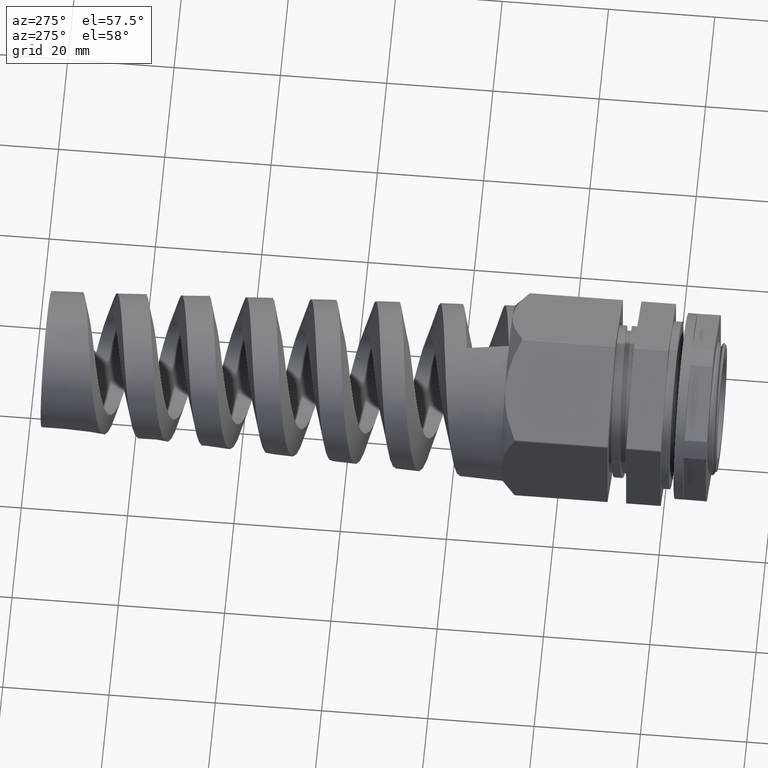
[diagram: clean part render]
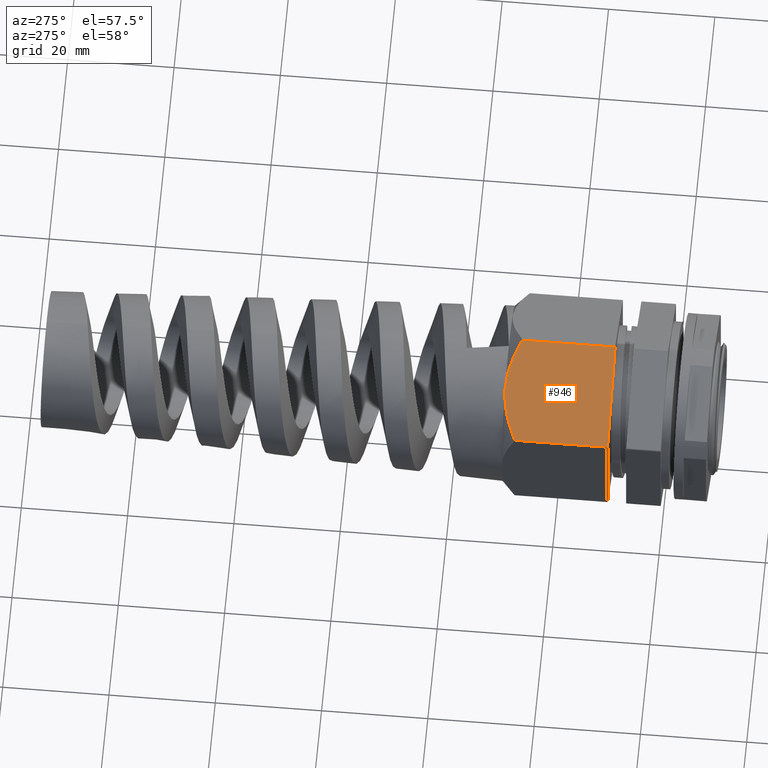
[diagram: same view with one face highlighted and labeled with its STEP entity id]
A machine part, auxiliary view. The second image highlights one B-rep face of the part: STEP entity #946.
In plain terms, the highlighted planar face has unit normal (0.5, 0, -0.866).
Its self-contained STEP definition (entity closure, byte-faithful):
#49 = CARTESIAN_POINT ( 'NONE',  ( -8.963920435851523600, 30.00000000000000400, 13.87723700662438400 ) ) ;
#487 = B_SPLINE_CURVE_WITH_KNOTS ( 'NONE', 3,
 ( #11593, #10375, #12693, #5910, #13800, #7095, #49, #8266 ),
 .UNSPECIFIED., .F., .F.,
 ( 4, 2, 2, 4 ),
 ( 2.540305968342817100E-007, 0.004879683980089100300, 0.007319398954835234700, 0.009759113929581370000 ),
 .UNSPECIFIED. ) ;
#613 = EDGE_CURVE ( 'NONE', #911, #1411, #5932, .T. ) ;
#911 = VERTEX_POINT ( 'NONE', #3100 ) ;
#946 = ADVANCED_FACE ( 'NONE', ( #980 ), #2974, .F. ) ;
#980 = FACE_OUTER_BOUND ( 'NONE', #12245, .T. ) ;
#1199 = ORIENTED_EDGE ( 'NONE', *, *, #9660, .F. ) ;
#1411 = VERTEX_POINT ( 'NONE', #9355 ) ;
#1514 = CARTESIAN_POINT ( 'NONE',  ( -22.49999999999999600, 9.999999999999994700, 6.062177826491074800 ) ) ;
#1539 = CARTESIAN_POINT ( 'NONE',  ( -16.40858443604035300, -10.00000000000000200, 9.579058242089050900 ) ) ;
#2330 = VECTOR ( 'NONE', #13020, 1000.000000000000100 ) ;
#2706 = DIRECTION ( 'NONE',  ( 0.0000000000000000000, 1.000000000000000000, 0.0000000000000000000 ) ) ;
#2757 = CARTESIAN_POINT ( 'NONE',  ( -8.249999999999998200, 29.99999999999999600, 14.28941916244323600 ) ) ;
#2923 = EDGE_CURVE ( 'NONE', #911, #11036, #8530, .T. ) ;
#2939 = DIRECTION ( 'NONE',  ( -0.8660254037844387100, 0.0000000000000000000, -0.4999999999999997800 ) ) ;
#2951 = DIRECTION ( 'NONE',  ( 0.4999999999999998300, 0.0000000000000000000, -0.8660254037844388200 ) ) ;
#2955 = CARTESIAN_POINT ( 'NONE',  ( -8.249999999999994700, -10.00000000000000200, 14.28941916244323800 ) ) ;
#2974 = PLANE ( 'NONE',  #11872 ) ;
#3100 = CARTESIAN_POINT ( 'NONE',  ( -0.09141556395963861000, 9.999999999999994700, 18.99978008279742900 ) ) ;
#3488 = LINE ( 'NONE', #1539, #14836 ) ;
#3889 = EDGE_CURVE ( 'NONE', #6826, #1411, #9228, .T. ) ;
#3948 = CARTESIAN_POINT ( 'NONE',  ( -5.437743523907922600, 29.75263167343365500, 15.91307619594525800 ) ) ;
#5104 = CARTESIAN_POINT ( 'NONE',  ( -2.701552586258486600, 28.81364461683877600, 17.49281677035138200 ) ) ;
#5590 = CARTESIAN_POINT ( 'NONE',  ( -16.40858443604035300, 9.999999999999994700, 9.579058242089050900 ) ) ;
#5910 = CARTESIAN_POINT ( 'NONE',  ( -11.78546680212586400, 29.51905408348194400, 12.24821645252487900 ) ) ;
#5932 = LINE ( 'NONE', #6948, #11635 ) ;
#6294 = CARTESIAN_POINT ( 'NONE',  ( -0.7309662557640302900, 27.86616339089227500, 18.63053531872375100 ) ) ;
#6826 = VERTEX_POINT ( 'NONE', #14372 ) ;
#6948 = CARTESIAN_POINT ( 'NONE',  ( -0.09141556395963861000, -10.00000000000000200, 18.99978008279742900 ) ) ;
#6967 = DIRECTION ( 'NONE',  ( 0.0000000000000000000, 1.000000000000000000, 0.0000000000000000000 ) ) ;
#7095 = CARTESIAN_POINT ( 'NONE',  ( -9.688382734020869700, 29.93610428085150200, 13.45896850375858000 ) ) ;
#7449 = CARTESIAN_POINT ( 'NONE',  ( -16.40858443604035300, 27.49999999999998900, 9.579058242089050900 ) ) ;
#8266 = CARTESIAN_POINT ( 'NONE',  ( -8.249999999999998200, 29.99999999999999600, 14.28941916244323600 ) ) ;
#8530 = LINE ( 'NONE', #1514, #2330 ) ;
#8623 = ORIENTED_EDGE ( 'NONE', *, *, #14436, .F. ) ;
#9228 = B_SPLINE_CURVE_WITH_KNOTS ( 'NONE', 3,
 ( #2757, #12995, #3948, #11945, #5104, #13045, #6294, #14153 ),
 .UNSPECIFIED., .F., .F.,
 ( 4, 2, 2, 4 ),
 ( 0.009759113929581370000, 0.01460543147007171500, 0.01702859024031688800, 0.01945174901056205900 ),
 .UNSPECIFIED. ) ;
#9355 = CARTESIAN_POINT ( 'NONE',  ( -0.09141556395963861000, 27.49999999999998900, 18.99978008279742900 ) ) ;
#9660 = EDGE_CURVE ( 'NONE', #12112, #6826, #487, .T. ) ;
#10375 = CARTESIAN_POINT ( 'NONE',  ( -15.12804688940243600, 28.23314903142214400, 10.31837693934787700 ) ) ;
#11036 = VERTEX_POINT ( 'NONE', #5590 ) ;
#11221 = ORIENTED_EDGE ( 'NONE', *, *, #613, .T. ) ;
#11593 = CARTESIAN_POINT ( 'NONE',  ( -16.40858443604035300, 27.49999999999998900, 9.579058242089050900 ) ) ;
#11635 = VECTOR ( 'NONE', #6967, 1000.000000000000000 ) ;
#11872 = AXIS2_PLACEMENT_3D ( 'NONE', #2955, #2951, #2939 ) ;
#11945 = CARTESIAN_POINT ( 'NONE',  ( -3.375603520720158000, 29.08306918483436500, 17.10365328189241700 ) ) ;
#12112 = VERTEX_POINT ( 'NONE', #7449 ) ;
#12245 = EDGE_LOOP ( 'NONE', ( #8623, #14589, #11221, #13921, #1199 ) ) ;
#12693 = CARTESIAN_POINT ( 'NONE',  ( -13.81878214879113800, 28.85504584896510800, 11.07428128978028800 ) ) ;
#12995 = CARTESIAN_POINT ( 'NONE',  ( -6.831848631255872400, 30.00000000000000400, 15.10818923693929400 ) ) ;
#13020 = DIRECTION ( 'NONE',  ( -0.8660254037844387100, 1.459379125177923700E-018, -0.4999999999999997800 ) ) ;
#13045 = CARTESIAN_POINT ( 'NONE',  ( -1.379785728230522600, 28.20537599943351700, 18.25593922163975700 ) ) ;
#13800 = CARTESIAN_POINT ( 'NONE',  ( -11.09600753867012600, 29.69512788636353700, 12.64627594387633600 ) ) ;
#13921 = ORIENTED_EDGE ( 'NONE', *, *, #3889, .F. ) ;
#14153 = CARTESIAN_POINT ( 'NONE',  ( -0.09141556395963861000, 27.49999999999998900, 18.99978008279742900 ) ) ;
#14372 = CARTESIAN_POINT ( 'NONE',  ( -8.249999999999998200, 29.99999999999999600, 14.28941916244323600 ) ) ;
#14436 = EDGE_CURVE ( 'NONE', #11036, #12112, #3488, .T. ) ;
#14589 = ORIENTED_EDGE ( 'NONE', *, *, #2923, .F. ) ;
#14836 = VECTOR ( 'NONE', #2706, 1000.000000000000000 ) ;